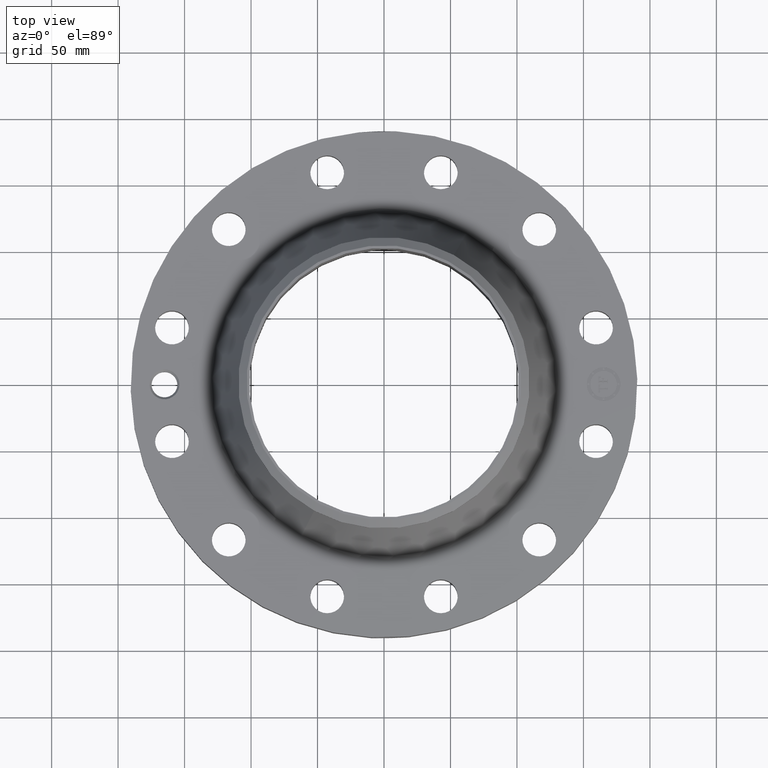
[diagram: clean part render]
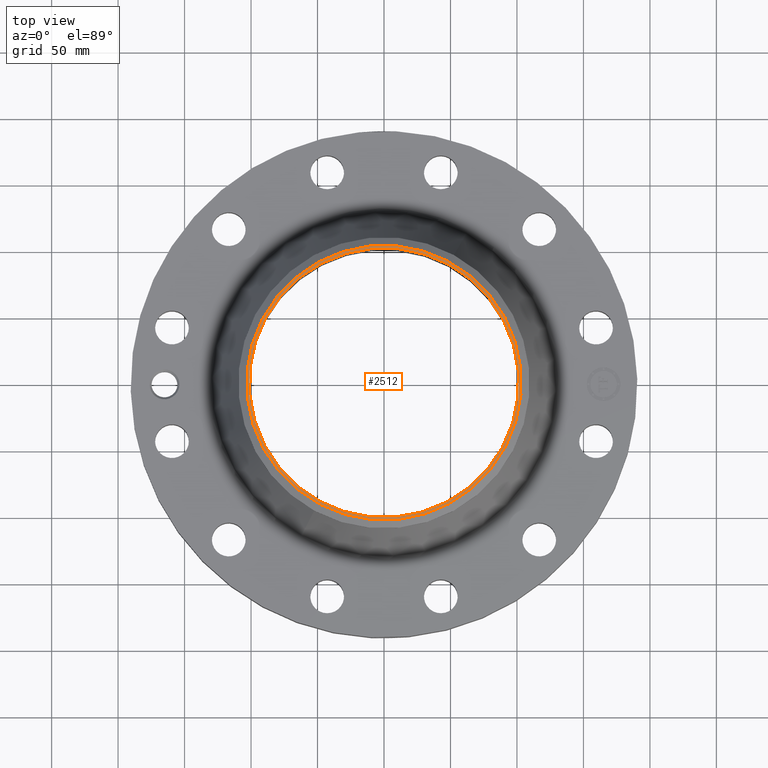
[diagram: same view with one face highlighted and labeled with its STEP entity id]
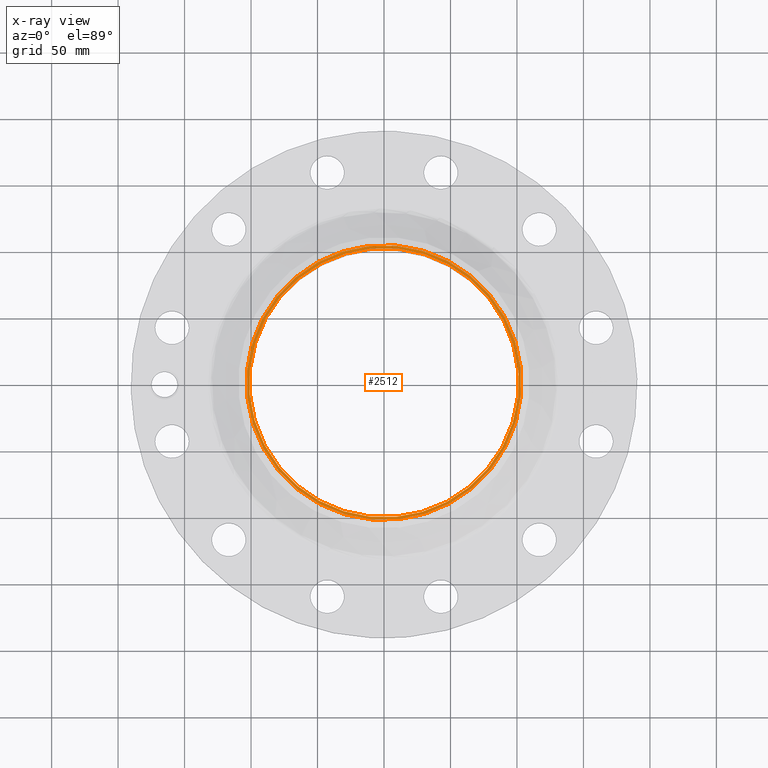
[diagram: x-ray of the same camera — body ghosted, the highlighted face saturated]
A machine part, top view. The second image highlights one B-rep face of the part: STEP entity #2512.
The next image is the same camera in x-ray: the body ghosted, the highlighted face saturated — about 0% of this face is hidden behind the body in this view.
In plain terms, the highlighted planar face has unit normal (0, 0, -1).
Its self-contained STEP definition (entity closure, byte-faithful):
#1240=AXIS2_PLACEMENT_3D('Circle Axis2P3D',#1238,#1239,$) ;
#1308=AXIS2_PLACEMENT_3D('Circle Axis2P3D',#1306,#1307,$) ;
#2488=AXIS2_PLACEMENT_3D('Plane Axis2P3D',#2485,#2486,#2487) ;
#2492=AXIS2_PLACEMENT_3D('Circle Axis2P3D',#2490,#2491,$) ;
#2501=AXIS2_PLACEMENT_3D('Circle Axis2P3D',#2499,#2500,$) ;
#1238=CARTESIAN_POINT('Axis2P3D Location',(0.,0.,4.44000000002)) ;
#1242=CARTESIAN_POINT('Vertex',(1.91314761181,3.50199321324,4.44000000002)) ;
#1244=CARTESIAN_POINT('Vertex',(-1.91314761181,-3.50199321324,4.44000000002)) ;
#1306=CARTESIAN_POINT('Axis2P3D Location',(0.,0.,4.44000000002)) ;
#2485=CARTESIAN_POINT('Axis2P3D Location',(0.,4.31500000002,4.44000000002)) ;
#2490=CARTESIAN_POINT('Axis2P3D Location',(0.,0.,4.44000000002)) ;
#2494=CARTESIAN_POINT('Vertex',(1.95089765422,-3.57109420236,4.44000000002)) ;
#2496=CARTESIAN_POINT('Vertex',(-1.95089765422,3.57109420236,4.44000000002)) ;
#2499=CARTESIAN_POINT('Axis2P3D Location',(0.,0.,4.44000000002)) ;
#1239=DIRECTION('Axis2P3D Direction',(0.,0.,-0.0393700787402)) ;
#1307=DIRECTION('Axis2P3D Direction',(0.,0.,-0.0393700787402)) ;
#2486=DIRECTION('Axis2P3D Direction',(0.,0.,-0.0393700787402)) ;
#2487=DIRECTION('Axis2P3D XDirection',(0.0393700787402,0.,0.)) ;
#2491=DIRECTION('Axis2P3D Direction',(0.,0.,-0.0393700787402)) ;
#2500=DIRECTION('Axis2P3D Direction',(0.,0.,-0.0393700787402)) ;
#2505=ORIENTED_EDGE('',*,*,#2498,.T.) ;
#2506=ORIENTED_EDGE('',*,*,#2503,.T.) ;
#2509=ORIENTED_EDGE('',*,*,#1310,.T.) ;
#2510=ORIENTED_EDGE('',*,*,#1246,.T.) ;
#2511=FACE_BOUND('',#2508,.T.) ;
#2512=ADVANCED_FACE('PartBody',(#2507,#2511),#2489,.F.) ;
#1241=CIRCLE('generated circle',#1240,3.99050000002) ;
#1309=CIRCLE('generated circle',#1308,3.99050000002) ;
#2493=CIRCLE('generated circle',#2492,4.0692401575) ;
#2502=CIRCLE('generated circle',#2501,4.0692401575) ;
#1246=EDGE_CURVE('',#1243,#1245,#1241,.T.) ;
#1310=EDGE_CURVE('',#1245,#1243,#1309,.T.) ;
#2498=EDGE_CURVE('',#2495,#2497,#2493,.F.) ;
#2503=EDGE_CURVE('',#2497,#2495,#2502,.F.) ;
#2504=EDGE_LOOP('',(#2505,#2506)) ;
#2508=EDGE_LOOP('',(#2509,#2510)) ;
#2507=FACE_OUTER_BOUND('',#2504,.T.) ;
#2489=PLANE('',#2488) ;
#1243=VERTEX_POINT('',#1242) ;
#1245=VERTEX_POINT('',#1244) ;
#2495=VERTEX_POINT('',#2494) ;
#2497=VERTEX_POINT('',#2496) ;